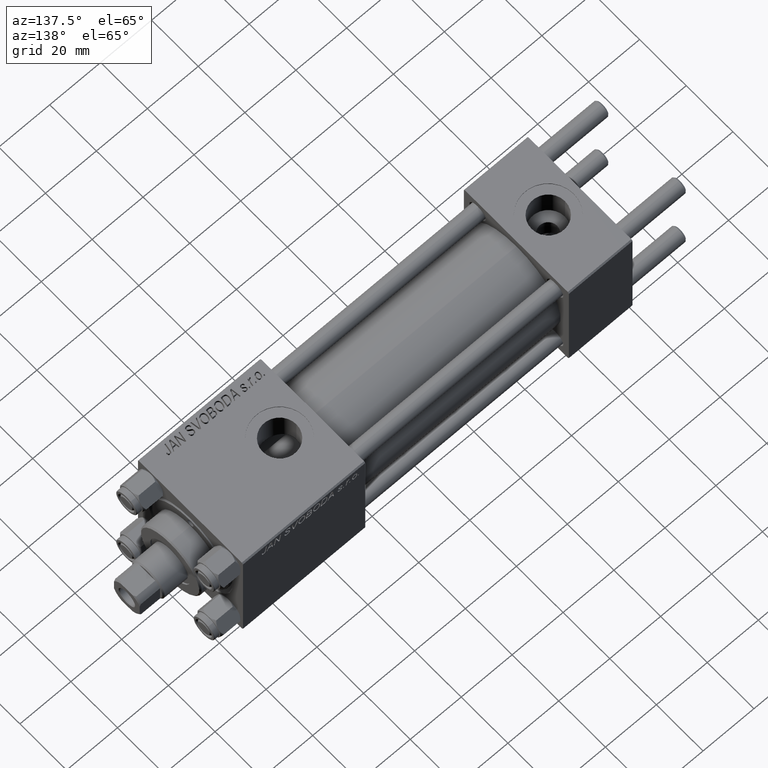
[diagram: clean part render]
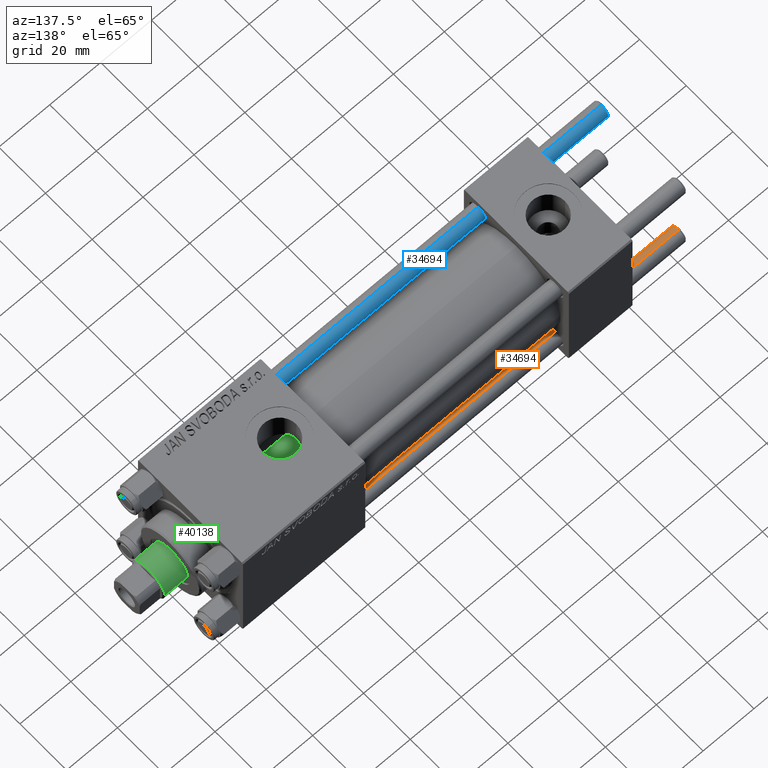
[diagram: same view with three faces highlighted in distinct colors, each labeled with its STEP entity id]
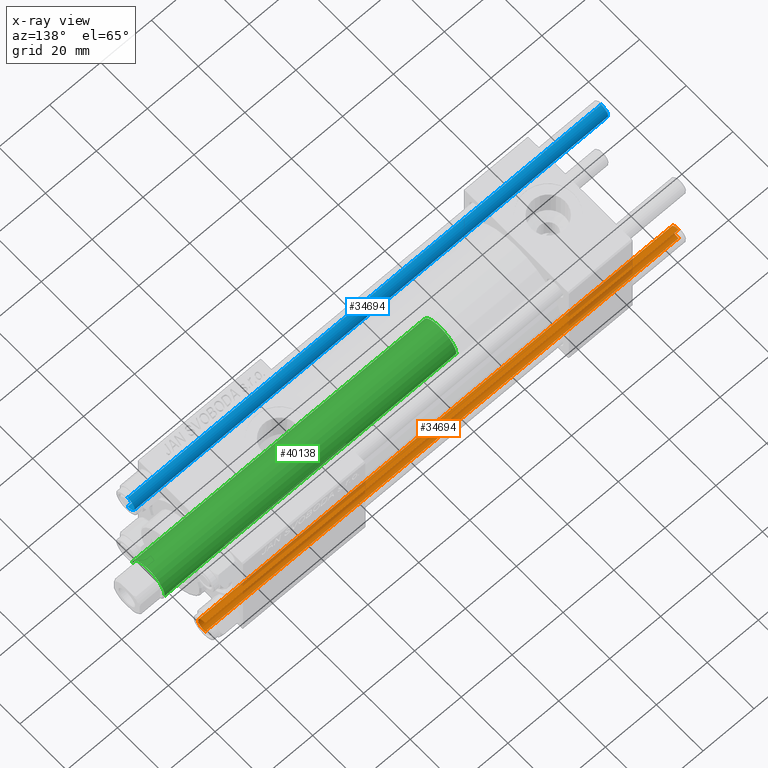
[diagram: x-ray of the same camera — body ghosted, the three highlighted faces saturated]
A machine part, auxiliary view with three faces highlighted in distinct colors.
The next image is the same camera in x-ray (body ghosted, the three faces saturated) — at least one of them is partly hidden behind the body in this view.
Their STEP definitions:

[orange] entity #34694 — the highlighted cylindrical surface (edge-blend (fillet) strip) has radius 3 mm, axis along (1, 0, -0).
#359 = VECTOR ( 'NONE', #18024, 1000.000000000000000 ) ;
#1288 = CARTESIAN_POINT ( 'NONE',  ( 0.000000000000000000, 0.000000000000000000, 0.5000000000000281997 ) ) ;
#2606 = CARTESIAN_POINT ( 'NONE',  ( 3.000000000000000444, 3.673940397442060361E-16, 187.0000000000000000 ) ) ;
#4062 = EDGE_CURVE ( 'NONE', #31694, #4205, #37252, .T. ) ;
#4107 = EDGE_CURVE ( 'NONE', #31694, #44848, #18235, .T. ) ;
#4205 = VERTEX_POINT ( 'NONE', #32650 ) ;
#4346 = AXIS2_PLACEMENT_3D ( 'NONE', #1288, #40719, #20993 ) ;
#5176 = FACE_OUTER_BOUND ( 'NONE', #7083, .T. ) ;
#5228 = VECTOR ( 'NONE', #16325, 1000.000000000000000 ) ;
#7083 = EDGE_LOOP ( 'NONE', ( #29518, #14244, #45046, #25830 ) ) ;
#9220 = CYLINDRICAL_SURFACE ( 'NONE', #47862, 3.000000000000000444 ) ;
#12039 = CARTESIAN_POINT ( 'NONE',  ( -3.000000000000000444, 0.000000000000000000, 187.0000000000000000 ) ) ;
#14244 = ORIENTED_EDGE ( 'NONE', *, *, #4107, .T. ) ;
#16325 = DIRECTION ( 'NONE',  ( -0.000000000000000000, -0.000000000000000000, -1.000000000000000000 ) ) ;
#18024 = DIRECTION ( 'NONE',  ( -0.000000000000000000, -0.000000000000000000, -1.000000000000000000 ) ) ;
#18235 = CIRCLE ( 'NONE', #34356, 3.000000000000000444 ) ;
#20330 = DIRECTION ( 'NONE',  ( -1.000000000000000000, 0.000000000000000000, 0.000000000000000000 ) ) ;
#20993 = DIRECTION ( 'NONE',  ( 1.000000000000000000, 0.000000000000000000, 0.000000000000000000 ) ) ;
#23630 = CARTESIAN_POINT ( 'NONE',  ( -3.000000000000000444, 0.000000000000000000, 186.5000000000000568 ) ) ;
#24886 = DIRECTION ( 'NONE',  ( -0.000000000000000000, -0.000000000000000000, -1.000000000000000000 ) ) ;
#25830 = ORIENTED_EDGE ( 'NONE', *, *, #42001, .T. ) ;
#25929 = CARTESIAN_POINT ( 'NONE',  ( -3.000000000000000444, 0.000000000000000000, 0.5000000000000281997 ) ) ;
#26146 = CIRCLE ( 'NONE', #4346, 3.000000000000000444 ) ;
#26608 = CARTESIAN_POINT ( 'NONE',  ( 0.000000000000000000, 0.000000000000000000, 186.5000000000000568 ) ) ;
#27702 = LINE ( 'NONE', #12039, #5228 ) ;
#29518 = ORIENTED_EDGE ( 'NONE', *, *, #4062, .F. ) ;
#31694 = VERTEX_POINT ( 'NONE', #46584 ) ;
#32650 = CARTESIAN_POINT ( 'NONE',  ( 3.000000000000000444, 3.673940397442060361E-16, 0.5000000000000281997 ) ) ;
#34356 = AXIS2_PLACEMENT_3D ( 'NONE', #26608, #46839, #42029 ) ;
#34694 = ADVANCED_FACE ( 'NONE', ( #5176 ), #9220, .T. ) ;
#37252 = LINE ( 'NONE', #2606, #359 ) ;
#40083 = EDGE_CURVE ( 'NONE', #44848, #43499, #27702, .T. ) ;
#40719 = DIRECTION ( 'NONE',  ( -0.000000000000000000, -0.000000000000000000, 1.000000000000000000 ) ) ;
#42001 = EDGE_CURVE ( 'NONE', #43499, #4205, #26146, .T. ) ;
#42029 = DIRECTION ( 'NONE',  ( 1.000000000000000000, 0.000000000000000000, 0.000000000000000000 ) ) ;
#43499 = VERTEX_POINT ( 'NONE', #25929 ) ;
#44119 = CARTESIAN_POINT ( 'NONE',  ( 0.000000000000000000, 0.000000000000000000, 187.0000000000000000 ) ) ;
#44848 = VERTEX_POINT ( 'NONE', #23630 ) ;
#45046 = ORIENTED_EDGE ( 'NONE', *, *, #40083, .T. ) ;
#46584 = CARTESIAN_POINT ( 'NONE',  ( 3.000000000000000444, 3.673940397442060361E-16, 186.5000000000000568 ) ) ;
#46839 = DIRECTION ( 'NONE',  ( 0.000000000000000000, 0.000000000000000000, -1.000000000000000000 ) ) ;
#47862 = AXIS2_PLACEMENT_3D ( 'NONE', #44119, #24886, #20330 ) ;

[blue] entity #34694 — the highlighted cylindrical surface (edge-blend (fillet) strip) has radius 3 mm, axis along (1, -0, 0).
#359 = VECTOR ( 'NONE', #18024, 1000.000000000000000 ) ;
#1288 = CARTESIAN_POINT ( 'NONE',  ( 0.000000000000000000, 0.000000000000000000, 0.5000000000000281997 ) ) ;
#2606 = CARTESIAN_POINT ( 'NONE',  ( 3.000000000000000444, 3.673940397442060361E-16, 187.0000000000000000 ) ) ;
#4062 = EDGE_CURVE ( 'NONE', #31694, #4205, #37252, .T. ) ;
#4107 = EDGE_CURVE ( 'NONE', #31694, #44848, #18235, .T. ) ;
#4205 = VERTEX_POINT ( 'NONE', #32650 ) ;
#4346 = AXIS2_PLACEMENT_3D ( 'NONE', #1288, #40719, #20993 ) ;
#5176 = FACE_OUTER_BOUND ( 'NONE', #7083, .T. ) ;
#5228 = VECTOR ( 'NONE', #16325, 1000.000000000000000 ) ;
#7083 = EDGE_LOOP ( 'NONE', ( #29518, #14244, #45046, #25830 ) ) ;
#9220 = CYLINDRICAL_SURFACE ( 'NONE', #47862, 3.000000000000000444 ) ;
#12039 = CARTESIAN_POINT ( 'NONE',  ( -3.000000000000000444, 0.000000000000000000, 187.0000000000000000 ) ) ;
#14244 = ORIENTED_EDGE ( 'NONE', *, *, #4107, .T. ) ;
#16325 = DIRECTION ( 'NONE',  ( -0.000000000000000000, -0.000000000000000000, -1.000000000000000000 ) ) ;
#18024 = DIRECTION ( 'NONE',  ( -0.000000000000000000, -0.000000000000000000, -1.000000000000000000 ) ) ;
#18235 = CIRCLE ( 'NONE', #34356, 3.000000000000000444 ) ;
#20330 = DIRECTION ( 'NONE',  ( -1.000000000000000000, 0.000000000000000000, 0.000000000000000000 ) ) ;
#20993 = DIRECTION ( 'NONE',  ( 1.000000000000000000, 0.000000000000000000, 0.000000000000000000 ) ) ;
#23630 = CARTESIAN_POINT ( 'NONE',  ( -3.000000000000000444, 0.000000000000000000, 186.5000000000000568 ) ) ;
#24886 = DIRECTION ( 'NONE',  ( -0.000000000000000000, -0.000000000000000000, -1.000000000000000000 ) ) ;
#25830 = ORIENTED_EDGE ( 'NONE', *, *, #42001, .T. ) ;
#25929 = CARTESIAN_POINT ( 'NONE',  ( -3.000000000000000444, 0.000000000000000000, 0.5000000000000281997 ) ) ;
#26146 = CIRCLE ( 'NONE', #4346, 3.000000000000000444 ) ;
#26608 = CARTESIAN_POINT ( 'NONE',  ( 0.000000000000000000, 0.000000000000000000, 186.5000000000000568 ) ) ;
#27702 = LINE ( 'NONE', #12039, #5228 ) ;
#29518 = ORIENTED_EDGE ( 'NONE', *, *, #4062, .F. ) ;
#31694 = VERTEX_POINT ( 'NONE', #46584 ) ;
#32650 = CARTESIAN_POINT ( 'NONE',  ( 3.000000000000000444, 3.673940397442060361E-16, 0.5000000000000281997 ) ) ;
#34356 = AXIS2_PLACEMENT_3D ( 'NONE', #26608, #46839, #42029 ) ;
#34694 = ADVANCED_FACE ( 'NONE', ( #5176 ), #9220, .T. ) ;
#37252 = LINE ( 'NONE', #2606, #359 ) ;
#40083 = EDGE_CURVE ( 'NONE', #44848, #43499, #27702, .T. ) ;
#40719 = DIRECTION ( 'NONE',  ( -0.000000000000000000, -0.000000000000000000, 1.000000000000000000 ) ) ;
#42001 = EDGE_CURVE ( 'NONE', #43499, #4205, #26146, .T. ) ;
#42029 = DIRECTION ( 'NONE',  ( 1.000000000000000000, 0.000000000000000000, 0.000000000000000000 ) ) ;
#43499 = VERTEX_POINT ( 'NONE', #25929 ) ;
#44119 = CARTESIAN_POINT ( 'NONE',  ( 0.000000000000000000, 0.000000000000000000, 187.0000000000000000 ) ) ;
#44848 = VERTEX_POINT ( 'NONE', #23630 ) ;
#45046 = ORIENTED_EDGE ( 'NONE', *, *, #40083, .T. ) ;
#46584 = CARTESIAN_POINT ( 'NONE',  ( 3.000000000000000444, 3.673940397442060361E-16, 186.5000000000000568 ) ) ;
#46839 = DIRECTION ( 'NONE',  ( 0.000000000000000000, 0.000000000000000000, -1.000000000000000000 ) ) ;
#47862 = AXIS2_PLACEMENT_3D ( 'NONE', #44119, #24886, #20330 ) ;

[green] entity #40138 — the highlighted cylindrical surface (edge-blend (fillet) strip) has radius 7 mm, axis along (-1, 0, 0).
#135 = DIRECTION ( 'NONE',  ( -1.000000000000000000, 0.000000000000000000, 0.000000000000000000 ) ) ;
#1149 = FACE_OUTER_BOUND ( 'NONE', #2500, .T. ) ;
#2500 = EDGE_LOOP ( 'NONE', ( #13728, #24110, #38253, #20941 ) ) ;
#3746 = EDGE_CURVE ( 'NONE', #5826, #33467, #34483, .T. ) ;
#4630 = CIRCLE ( 'NONE', #49046, 7.000000000000000000 ) ;
#5826 = VERTEX_POINT ( 'NONE', #45177 ) ;
#8354 = AXIS2_PLACEMENT_3D ( 'NONE', #24410, #39837, #135 ) ;
#8529 = CARTESIAN_POINT ( 'NONE',  ( 0.000000000000000000, 0.000000000000000000, 144.4999999999999716 ) ) ;
#9857 = CIRCLE ( 'NONE', #20333, 7.000000000000000000 ) ;
#10135 = CARTESIAN_POINT ( 'NONE',  ( -7.000000000000000000, 0.000000000000000000, 30.00000000000000000 ) ) ;
#11489 = DIRECTION ( 'NONE',  ( -0.000000000000000000, -0.000000000000000000, -1.000000000000000000 ) ) ;
#11566 = LINE ( 'NONE', #26988, #28991 ) ;
#12240 = CARTESIAN_POINT ( 'NONE',  ( 7.000000000000000000, 8.572527594031473190E-16, 145.0000000000000284 ) ) ;
#13728 = ORIENTED_EDGE ( 'NONE', *, *, #3746, .F. ) ;
#13997 = VERTEX_POINT ( 'NONE', #25391 ) ;
#15115 = EDGE_CURVE ( 'NONE', #13997, #42837, #11566, .T. ) ;
#16579 = CYLINDRICAL_SURFACE ( 'NONE', #8354, 7.000000000000000000 ) ;
#20333 = AXIS2_PLACEMENT_3D ( 'NONE', #8529, #42919, #42664 ) ;
#20941 = ORIENTED_EDGE ( 'NONE', *, *, #50066, .T. ) ;
#24110 = ORIENTED_EDGE ( 'NONE', *, *, #33212, .T. ) ;
#24410 = CARTESIAN_POINT ( 'NONE',  ( 0.000000000000000000, 0.000000000000000000, 145.0000000000000284 ) ) ;
#25391 = CARTESIAN_POINT ( 'NONE',  ( -7.000000000000000000, 0.000000000000000000, 144.4999999999999716 ) ) ;
#26232 = CARTESIAN_POINT ( 'NONE',  ( 7.000000000000000000, 8.572527594031473190E-16, 30.00000000000000000 ) ) ;
#26988 = CARTESIAN_POINT ( 'NONE',  ( -7.000000000000000000, 0.000000000000000000, 145.0000000000000284 ) ) ;
#28991 = VECTOR ( 'NONE', #46217, 1000.000000000000000 ) ;
#33008 = DIRECTION ( 'NONE',  ( 0.000000000000000000, 0.000000000000000000, 1.000000000000000000 ) ) ;
#33212 = EDGE_CURVE ( 'NONE', #5826, #13997, #9857, .T. ) ;
#33467 = VERTEX_POINT ( 'NONE', #26232 ) ;
#33578 = VECTOR ( 'NONE', #11489, 1000.000000000000000 ) ;
#34483 = LINE ( 'NONE', #12240, #33578 ) ;
#38253 = ORIENTED_EDGE ( 'NONE', *, *, #15115, .T. ) ;
#39837 = DIRECTION ( 'NONE',  ( -0.000000000000000000, -0.000000000000000000, -1.000000000000000000 ) ) ;
#40104 = CARTESIAN_POINT ( 'NONE',  ( 0.000000000000000000, 0.000000000000000000, 30.00000000000000000 ) ) ;
#40138 = ADVANCED_FACE ( 'NONE', ( #1149 ), #16579, .T. ) ;
#42664 = DIRECTION ( 'NONE',  ( 1.000000000000000000, 0.000000000000000000, 0.000000000000000000 ) ) ;
#42837 = VERTEX_POINT ( 'NONE', #10135 ) ;
#42919 = DIRECTION ( 'NONE',  ( 0.000000000000000000, 0.000000000000000000, -1.000000000000000000 ) ) ;
#45177 = CARTESIAN_POINT ( 'NONE',  ( 7.000000000000000000, 8.572527594031473190E-16, 144.4999999999999716 ) ) ;
#46217 = DIRECTION ( 'NONE',  ( -0.000000000000000000, -0.000000000000000000, -1.000000000000000000 ) ) ;
#48448 = DIRECTION ( 'NONE',  ( 1.000000000000000000, 0.000000000000000000, 0.000000000000000000 ) ) ;
#49046 = AXIS2_PLACEMENT_3D ( 'NONE', #40104, #33008, #48448 ) ;
#50066 = EDGE_CURVE ( 'NONE', #42837, #33467, #4630, .T. ) ;